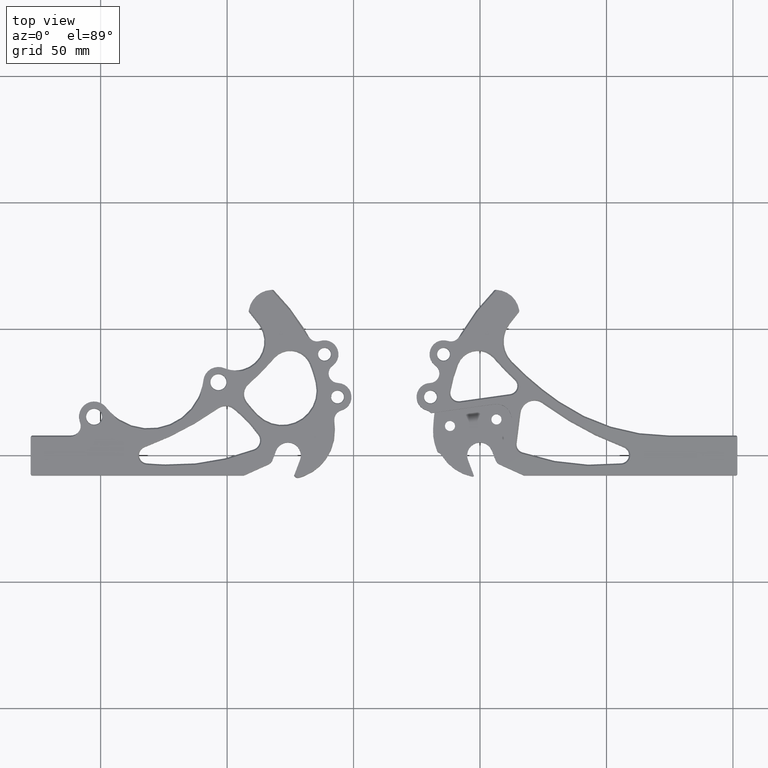
[diagram: clean part render]
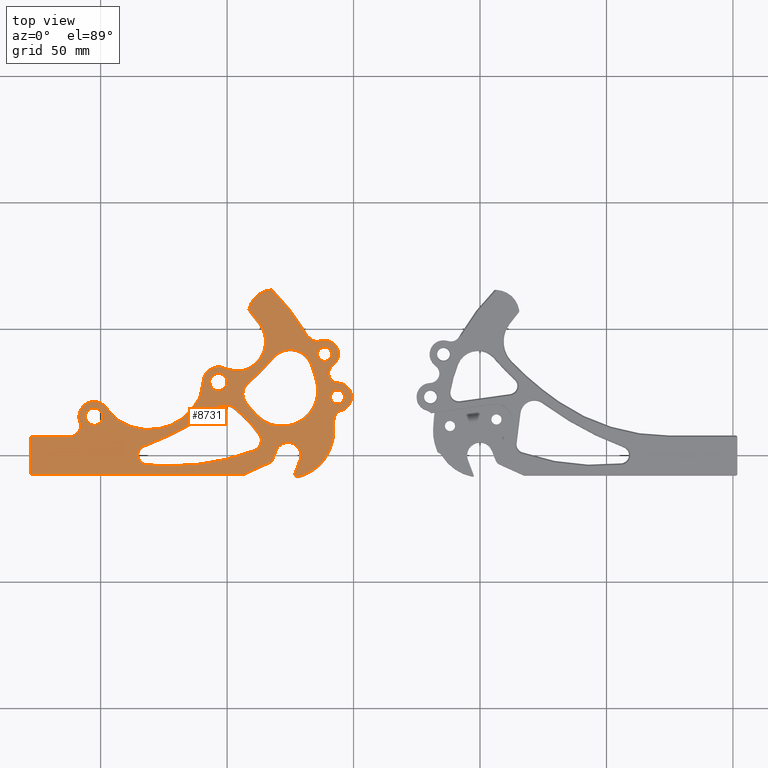
[diagram: same view with one face highlighted and labeled with its STEP entity id]
A machine part, top view. The second image highlights one B-rep face of the part: STEP entity #8731.
In plain terms, the highlighted planar face has unit normal (-0, 0, 1).
Its self-contained STEP definition (entity closure, byte-faithful):
#12 = DIRECTION ( 'NONE',  ( -0.0000000000000000000, 0.0000000000000000000, 1.000000000000000000 ) ) ;
#20 = EDGE_LOOP ( 'NONE', ( #5979, #8550, #7825, #1384, #9046, #2049, #3551, #8948 ) ) ;
#40 = CIRCLE ( 'NONE', #6398, 0.5545000000000007700 ) ;
#53 = CARTESIAN_POINT ( 'NONE',  ( 4.275448787308388200, -6.602741156965603200, 0.1970000000000466900 ) ) ;
#60 = CIRCLE ( 'NONE', #4588, 0.8500000000001419800 ) ;
#79 = CARTESIAN_POINT ( 'NONE',  ( 0.3476215611165375300, -6.033190573470813300, 0.1970000000000000100 ) ) ;
#87 = DIRECTION ( 'NONE',  ( 1.000000000000000000, 0.0000000000000000000, 0.0000000000000000000 ) ) ;
#90 = AXIS2_PLACEMENT_3D ( 'NONE', #1623, #6255, #833 ) ;
#91 = CARTESIAN_POINT ( 'NONE',  ( 2.744192585949976500, -6.801010541202033200, 0.1970000000000000100 ) ) ;
#104 = CARTESIAN_POINT ( 'NONE',  ( 0.3329559133930030700, -5.957140151456513000, 0.1970000000000004000 ) ) ;
#136 = DIRECTION ( 'NONE',  ( -0.0000000000000000000, 0.0000000000000000000, 1.000000000000000000 ) ) ;
#169 = EDGE_CURVE ( 'NONE', #3310, #4051, #8691, .T. ) ;
#193 = CARTESIAN_POINT ( 'NONE',  ( 1.581299777049116000, -6.132819681275631000, 0.1969999999999999800 ) ) ;
#208 = EDGE_CURVE ( 'NONE', #8678, #1447, #7953, .T. ) ;
#258 = ORIENTED_EDGE ( 'NONE', *, *, #9791, .F. ) ;
#262 = B_SPLINE_CURVE_WITH_KNOTS ( 'NONE', 3,
 ( #2720, #7400, #53, #6690, #8955, #4756, #8266, #7423, #9071 ),
 .UNSPECIFIED., .F., .F.,
 ( 4, 1, 1, 1, 1, 1, 4 ),
 ( 0.0000000000000000000, 0.0007344723342131463200, 0.001503647207485794100, 0.002277745142583869000, 0.002872480003196441100, 0.003452910538468640300, 0.003462682151923086900 ),
 .UNSPECIFIED. ) ;
#284 = ORIENTED_EDGE ( 'NONE', *, *, #5056, .F. ) ;
#305 = AXIS2_PLACEMENT_3D ( 'NONE', #2807, #8262, #4326 ) ;
#337 = VERTEX_POINT ( 'NONE', #6414 ) ;
#349 = DIRECTION ( 'NONE',  ( -0.0000000000000000000, 0.0000000000000000000, 1.000000000000000000 ) ) ;
#373 = VERTEX_POINT ( 'NONE', #2961 ) ;
#388 = CARTESIAN_POINT ( 'NONE',  ( 0.5065921858051957200, -4.735563363399697900, 0.1970000000000000100 ) ) ;
#406 = DIRECTION ( 'NONE',  ( 1.000000000000000000, 0.0000000000000000000, 0.0000000000000000000 ) ) ;
#419 = CARTESIAN_POINT ( 'NONE',  ( 2.282086955113391500, -6.063882068036988000, 0.1970000000000000100 ) ) ;
#465 = DIRECTION ( 'NONE',  ( -0.0000000000000000000, 0.0000000000000000000, 1.000000000000000000 ) ) ;
#477 = CARTESIAN_POINT ( 'NONE',  ( 0.2669999999986907800, -5.615564887599514800, 0.1970000000000000100 ) ) ;
#511 = AXIS2_PLACEMENT_3D ( 'NONE', #2852, #8298, #3623 ) ;
#518 = CIRCLE ( 'NONE', #9768, 0.2000000984159831500 ) ;
#529 = DIRECTION ( 'NONE',  ( -0.0000000000000000000, 0.0000000000000000000, 1.000000000000000000 ) ) ;
#535 = CARTESIAN_POINT ( 'NONE',  ( 2.081876398835472900, -6.268246739610420400, 0.1970000000000000100 ) ) ;
#548 = VECTOR ( 'NONE', #9881, 39.37007874015748100 ) ;
#553 = CIRCLE ( 'NONE', #8974, 0.03000000000000159100 ) ;
#559 = CARTESIAN_POINT ( 'NONE',  ( 0.8676433948095647600, -5.661552700292130400, 0.1970000000000000100 ) ) ;
#577 = B_SPLINE_CURVE_WITH_KNOTS ( 'NONE', 3,
 ( #6825, #3137, #5904, #6548, #2652, #6521 ),
 .UNSPECIFIED., .F., .F.,
 ( 4, 1, 1, 4 ),
 ( 0.001911238113251691900, 0.002981495565386614500, 0.004162674628813085700, 0.005325524112672994100 ),
 .UNSPECIFIED. ) ;
#599 = EDGE_CURVE ( 'NONE', #5606, #5803, #2945, .T. ) ;
#602 = AXIS2_PLACEMENT_3D ( 'NONE', #8629, #3164, #7836 ) ;
#612 = ORIENTED_EDGE ( 'NONE', *, *, #3552, .T. ) ;
#625 = ORIENTED_EDGE ( 'NONE', *, *, #4927, .F. ) ;
#631 = CIRCLE ( 'NONE', #5419, 0.1499999999999997700 ) ;
#674 = CARTESIAN_POINT ( 'NONE',  ( 1.484434612203321600, -5.643877487171083700, 0.1970000000000000100 ) ) ;
#686 = CARTESIAN_POINT ( 'NONE',  ( 1.646137060386013900, -4.239424942215595000, 0.1970000000000000600 ) ) ;
#732 = EDGE_CURVE ( 'NONE', #6223, #8571, #1736, .T. ) ;
#734 = EDGE_LOOP ( 'NONE', ( #6839, #5052, #5827, #5948, #6932, #8970, #7694 ) ) ;
#751 = VERTEX_POINT ( 'NONE', #5160 ) ;
#754 = B_SPLINE_CURVE_WITH_KNOTS ( 'NONE', 3,
 ( #9390, #3943, #4721, #859, #2526, #1416 ),
 .UNSPECIFIED., .F., .F.,
 ( 4, 1, 1, 4 ),
 ( 0.001690113143063945700, 0.006472976187355167900, 0.01329005639562897000, 0.02395186904596145100 ),
 .UNSPECIFIED. ) ;
#756 = ORIENTED_EDGE ( 'NONE', *, *, #5856, .T. ) ;
#762 = CARTESIAN_POINT ( 'NONE',  ( 1.484434612203321600, -5.643877487171083700, 0.1970000000000000100 ) ) ;
#775 = CARTESIAN_POINT ( 'NONE',  ( 0.7204578753231945000, -4.629157753844930700, 0.1970000000000003400 ) ) ;
#833 = DIRECTION ( 'NONE',  ( 1.000000000000000000, 0.0000000000000000000, 0.0000000000000000000 ) ) ;
#836 = VERTEX_POINT ( 'NONE', #4398 ) ;
#859 = CARTESIAN_POINT ( 'NONE',  ( 0.3508159347527157200, -6.403799966323091100, 0.1969999999999999800 ) ) ;
#861 = CARTESIAN_POINT ( 'NONE',  ( 0.9010326410232224500, -6.823934965465375600, 0.1970000000000001700 ) ) ;
#948 = ORIENTED_EDGE ( 'NONE', *, *, #6397, .T. ) ;
#949 = CARTESIAN_POINT ( 'NONE',  ( 2.325103046238602600, -4.695402574595497900, 0.1970000000000000400 ) ) ;
#962 = EDGE_CURVE ( 'NONE', #2218, #9873, #1936, .T. ) ;
#1007 = CIRCLE ( 'NONE', #5102, 1.999999999999869400 ) ;
#1018 = CIRCLE ( 'NONE', #305, 0.1350000000000000600 ) ;
#1029 = DIRECTION ( 'NONE',  ( -0.0000000000000000000, 0.0000000000000000000, 1.000000000000000000 ) ) ;
#1058 = DIRECTION ( 'NONE',  ( 0.0000000000000000000, -0.0000000000000000000, -1.000000000000000000 ) ) ;
#1073 = CARTESIAN_POINT ( 'NONE',  ( 1.489745673178416200, -6.071938460484731500, 0.1970000000000000400 ) ) ;
#1088 = VERTEX_POINT ( 'NONE', #3465 ) ;
#1130 = DIRECTION ( 'NONE',  ( 1.000000000000000000, 0.0000000000000000000, 0.0000000000000000000 ) ) ;
#1177 = CARTESIAN_POINT ( 'NONE',  ( 1.381798636898517100, -4.580043737796999400, 0.1970000000000000100 ) ) ;
#1201 = AXIS2_PLACEMENT_3D ( 'NONE', #5866, #1221, #6651 ) ;
#1221 = DIRECTION ( 'NONE',  ( 0.0000000000000000000, -0.0000000000000000000, -1.000000000000000000 ) ) ;
#1223 = CARTESIAN_POINT ( 'NONE',  ( 2.915556981445827300, -3.811641052466541600, 0.1970000000000000100 ) ) ;
#1226 = CARTESIAN_POINT ( 'NONE',  ( 2.032986257471999900, -6.120326437051000200, 0.1970000000000000100 ) ) ;
#1237 = CARTESIAN_POINT ( 'NONE',  ( 0.2291863249950003000, -4.943986327537000000, 0.1970000000000000100 ) ) ;
#1287 = FACE_BOUND ( 'NONE', #734, .T. ) ;
#1301 = CIRCLE ( 'NONE', #5322, 0.02999999999999886100 ) ;
#1304 = EDGE_CURVE ( 'NONE', #1349, #5822, #6323, .T. ) ;
#1306 = AXIS2_PLACEMENT_3D ( 'NONE', #3519, #7861, #8149 ) ;
#1308 = CARTESIAN_POINT ( 'NONE',  ( 2.588806816726662700, -5.977932969990835200, 0.1970000000000000100 ) ) ;
#1317 = CARTESIAN_POINT ( 'NONE',  ( 1.474215631377165900, -6.067252950285178400, 0.1970000000000000100 ) ) ;
#1327 = CARTESIAN_POINT ( 'NONE',  ( 1.399084633085560000, -4.909304638426801800, 0.1970000000000000100 ) ) ;
#1333 = AXIS2_PLACEMENT_3D ( 'NONE', #1794, #1029, #9631 ) ;
#1349 = VERTEX_POINT ( 'NONE', #1226 ) ;
#1366 = CARTESIAN_POINT ( 'NONE',  ( 1.581798735314500200, -4.580043737796999400, 0.1970000000000000100 ) ) ;
#1384 = ORIENTED_EDGE ( 'NONE', *, *, #3867, .T. ) ;
#1416 = CARTESIAN_POINT ( 'NONE',  ( 0.3476215611165375300, -6.033190573470813300, 0.1970000000000000100 ) ) ;
#1447 = VERTEX_POINT ( 'NONE', #3130 ) ;
#1449 = DIRECTION ( 'NONE',  ( 0.0000000000000000000, -0.0000000000000000000, -1.000000000000000000 ) ) ;
#1458 = CARTESIAN_POINT ( 'NONE',  ( 0.7651717925219148100, -4.547289657430909000, 0.1970000000000000100 ) ) ;
#1460 = DIRECTION ( 'NONE',  ( 1.000000000000000000, 0.0000000000000000000, 0.0000000000000000000 ) ) ;
#1467 = CARTESIAN_POINT ( 'NONE',  ( 5.135907500282827200, -6.446954203836671800, 0.1970000000000000100 ) ) ;
#1471 = CARTESIAN_POINT ( 'NONE',  ( 1.634512841890023000, -4.222794204222813300, 0.1969999999999999800 ) ) ;
#1480 = DIRECTION ( 'NONE',  ( 1.000000000000000000, 0.0000000000000000000, 0.0000000000000000000 ) ) ;
#1493 = EDGE_CURVE ( 'NONE', #4612, #5010, #2794, .T. ) ;
#1501 = ORIENTED_EDGE ( 'NONE', *, *, #6686, .F. ) ;
#1508 = CARTESIAN_POINT ( 'NONE',  ( 1.987018777843268000, -4.919136670115161500, 0.1970000000000000100 ) ) ;
#1539 = CIRCLE ( 'NONE', #2536, 0.1700000000002530600 ) ;
#1552 = EDGE_CURVE ( 'NONE', #10032, #1815, #8284, .T. ) ;
#1559 = DIRECTION ( 'NONE',  ( 0.8487033737782594400, -0.5288691552145953200, 0.0000000000000000000 ) ) ;
#1562 = CARTESIAN_POINT ( 'NONE',  ( 0.8694017407410261600, -6.546989929891339000, 0.1970000000000000100 ) ) ;
#1581 = VERTEX_POINT ( 'NONE', #9823 ) ;
#1585 = DIRECTION ( 'NONE',  ( -0.0000000000000000000, 0.0000000000000000000, 1.000000000000000000 ) ) ;
#1623 = CARTESIAN_POINT ( 'NONE',  ( 2.403199553980000000, -10.78644950725700000, 0.1970000000000000100 ) ) ;
#1625 = DIRECTION ( 'NONE',  ( 1.000000000000000000, 0.0000000000000000000, 0.0000000000000000000 ) ) ;
#1691 = CARTESIAN_POINT ( 'NONE',  ( 0.3476215611165375300, -6.033190573470813300, 0.1970000000000000100 ) ) ;
#1701 = CARTESIAN_POINT ( 'NONE',  ( 3.589510430735898300, -6.711916538672154400, 0.1970000000000000100 ) ) ;
#1736 = CIRCLE ( 'NONE', #4577, 0.2169999999996839700 ) ;
#1765 = CIRCLE ( 'NONE', #2512, 0.3500000000000004800 ) ;
#1794 = CARTESIAN_POINT ( 'NONE',  ( 0.2426486741714924400, -5.249373663059032900, 0.1970000000000000100 ) ) ;
#1796 = DIRECTION ( 'NONE',  ( 1.000000000000000000, 0.0000000000000000000, 0.0000000000000000000 ) ) ;
#1815 = VERTEX_POINT ( 'NONE', #2129 ) ;
#1878 = DIRECTION ( 'NONE',  ( 1.000000000000000000, 0.0000000000000000000, 0.0000000000000000000 ) ) ;
#1884 = CARTESIAN_POINT ( 'NONE',  ( 1.707515800357571400, -5.623609692723311700, 0.1970000000000000100 ) ) ;
#1885 = DIRECTION ( 'NONE',  ( 0.0000000000000000000, -0.0000000000000000000, -1.000000000000000000 ) ) ;
#1923 = VERTEX_POINT ( 'NONE', #4797 ) ;
#1927 = CARTESIAN_POINT ( 'NONE',  ( 2.205591606490957500, -6.131873938628049600, 0.1970000000000004200 ) ) ;
#1929 = ORIENTED_EDGE ( 'NONE', *, *, #9781, .F. ) ;
#1936 = B_SPLINE_CURVE_WITH_KNOTS ( 'NONE', 3,
 ( #6816, #8322, #3742, #7577, #775, #2941 ),
 .UNSPECIFIED., .F., .F.,
 ( 4, 1, 1, 4 ),
 ( 0.001728275671221370400, 0.002204944055822230900, 0.003080583991056806500, 0.003933433449648670800 ),
 .UNSPECIFIED. ) ;
#1990 = ORIENTED_EDGE ( 'NONE', *, *, #10002, .T. ) ;
#1992 = AXIS2_PLACEMENT_3D ( 'NONE', #6798, #5452, #9389 ) ;
#2012 = CIRCLE ( 'NONE', #1333, 0.1499999999999994900 ) ;
#2041 = CARTESIAN_POINT ( 'NONE',  ( 1.705495466171547100, -6.256866889901541400, 0.1970000000000000100 ) ) ;
#2049 = ORIENTED_EDGE ( 'NONE', *, *, #3898, .T. ) ;
#2067 = DIRECTION ( 'NONE',  ( 0.0000000000000000000, -0.0000000000000000000, -1.000000000000000000 ) ) ;
#2088 = CARTESIAN_POINT ( 'NONE',  ( 0.2669999999986907800, -5.615564887599514800, 0.1970000000000000100 ) ) ;
#2093 = DIRECTION ( 'NONE',  ( -1.000000000000000000, 0.0000000000000000000, 0.0000000000000000000 ) ) ;
#2121 = CARTESIAN_POINT ( 'NONE',  ( 3.526886090137587800, -5.620948073003913400, 0.1970000000000000100 ) ) ;
#2129 = CARTESIAN_POINT ( 'NONE',  ( 1.591698944833728000, -6.145239618651456400, 0.1969999999999999800 ) ) ;
#2131 = LINE ( 'NONE', #3862, #3942 ) ;
#2158 = CARTESIAN_POINT ( 'NONE',  ( 1.338457940387493000, -6.517219448302497200, 0.1970000000000000100 ) ) ;
#2193 = VERTEX_POINT ( 'NONE', #2236 ) ;
#2197 = VERTEX_POINT ( 'NONE', #4534 ) ;
#2205 = CARTESIAN_POINT ( 'NONE',  ( 2.108945101150802200, -5.570743388523873700, 0.1970000000000000100 ) ) ;
#2218 = VERTEX_POINT ( 'NONE', #2690 ) ;
#2227 = CIRCLE ( 'NONE', #3144, 0.2240000000002883300 ) ;
#2236 = CARTESIAN_POINT ( 'NONE',  ( 1.650104297209338900, -4.256333027767045300, 0.1970000000000000400 ) ) ;
#2265 = AXIS2_PLACEMENT_3D ( 'NONE', #3443, #9958, #1878 ) ;
#2283 = DIRECTION ( 'NONE',  ( 1.000000000000000000, 0.0000000000000000000, 0.0000000000000000000 ) ) ;
#2366 = VECTOR ( 'NONE', #9759, 39.37007874015748100 ) ;
#2389 = DIRECTION ( 'NONE',  ( 0.0000000000000000000, -0.0000000000000000000, -1.000000000000000000 ) ) ;
#2390 = B_SPLINE_CURVE_WITH_KNOTS ( 'NONE', 3,
 ( #2744, #3586, #193, #8744, #4040, #1073, #1317 ),
 .UNSPECIFIED., .F., .F.,
 ( 4, 1, 1, 1, 4 ),
 ( 0.002008121654696422800, 0.002089884964133354500, 0.003158846713755656000, 0.004414418043919220500, 0.005637919031326595700 ),
 .UNSPECIFIED. ) ;
#2392 = EDGE_CURVE ( 'NONE', #6223, #2919, #2012, .T. ) ;
#2478 = ORIENTED_EDGE ( 'NONE', *, *, #7068, .F. ) ;
#2479 = DIRECTION ( 'NONE',  ( 1.000000000000000000, 0.0000000000000000000, 0.0000000000000000000 ) ) ;
#2512 = AXIS2_PLACEMENT_3D ( 'NONE', #559, #5215, #9862 ) ;
#2514 = B_SPLINE_CURVE_WITH_KNOTS ( 'NONE', 3,
 ( #7690, #7662, #6903, #1471, #6111, #686, #5341, #9995, #4540 ),
 .UNSPECIFIED., .F., .F.,
 ( 4, 1, 1, 1, 1, 1, 4 ),
 ( 5.594315114139762000E-017, 0.0002753607405250657400, 0.0005590647134430104700, 0.0008520622772371910000, 0.001079147809332359900, 0.001300316271608144100, 0.001516630924246789100 ),
 .UNSPECIFIED. ) ;
#2526 = CARTESIAN_POINT ( 'NONE',  ( 0.3430531124395679300, -6.172932113467872700, 0.1969999999999999800 ) ) ;
#2536 = AXIS2_PLACEMENT_3D ( 'NONE', #7011, #2389, #7791 ) ;
#2549 = DIRECTION ( 'NONE',  ( 1.000000000000000000, -1.165588477296752500E-014, 0.0000000000000000000 ) ) ;
#2555 = EDGE_CURVE ( 'NONE', #3765, #5581, #553, .T. ) ;
#2562 = CARTESIAN_POINT ( 'NONE',  ( 3.587452191816793900, -5.741370570200848200, 0.1970000000000000100 ) ) ;
#2570 = ORIENTED_EDGE ( 'NONE', *, *, #2555, .T. ) ;
#2577 = ORIENTED_EDGE ( 'NONE', *, *, #1552, .F. ) ;
#2578 = ORIENTED_EDGE ( 'NONE', *, *, #732, .T. ) ;
#2611 = LINE ( 'NONE', #2873, #548 ) ;
#2625 = CARTESIAN_POINT ( 'NONE',  ( 3.689210444111999700, -6.687179850910999900, 0.1970000000000000100 ) ) ;
#2639 = EDGE_CURVE ( 'NONE', #9913, #2715, #2131, .T. ) ;
#2652 = CARTESIAN_POINT ( 'NONE',  ( 3.536574766583529400, -6.441474443760585100, 0.1969999999999995600 ) ) ;
#2690 = CARTESIAN_POINT ( 'NONE',  ( 0.6674097470394541000, -4.682728996910170400, 0.1970000000000000400 ) ) ;
#2698 = AXIS2_PLACEMENT_3D ( 'NONE', #7157, #9654, #4985 ) ;
#2715 = VERTEX_POINT ( 'NONE', #4711 ) ;
#2720 = CARTESIAN_POINT ( 'NONE',  ( 4.301417304959994900, -6.616228746393506600, 0.1970000000000000100 ) ) ;
#2744 = CARTESIAN_POINT ( 'NONE',  ( 1.591698944833728000, -6.145239618651456400, 0.1969999999999999800 ) ) ;
#2763 = PLANE ( 'NONE',  #4066 ) ;
#2765 = EDGE_CURVE ( 'NONE', #836, #4724, #5296, .T. ) ;
#2778 = DIRECTION ( 'NONE',  ( 1.000000000000000000, 0.0000000000000000000, 0.0000000000000000000 ) ) ;
#2794 = CIRCLE ( 'NONE', #9207, 0.1250000000000004400 ) ;
#2807 = CARTESIAN_POINT ( 'NONE',  ( 1.897986257471999700, -6.120326437051000200, 0.1970000000000000100 ) ) ;
#2828 = CIRCLE ( 'NONE', #7744, 0.2169999999996839700 ) ;
#2838 = VECTOR ( 'NONE', #5032, 39.37007874015748900 ) ;
#2846 = CIRCLE ( 'NONE', #10016, 0.7300002300663511700 ) ;
#2852 = CARTESIAN_POINT ( 'NONE',  ( 4.204051137979023500, -6.755860614468870700, 0.1970000000000000100 ) ) ;
#2873 = CARTESIAN_POINT ( 'NONE',  ( 1.650104297209338900, 0.0000000000000000000, 0.1970000000000000100 ) ) ;
#2919 = VERTEX_POINT ( 'NONE', #4149 ) ;
#2941 = CARTESIAN_POINT ( 'NONE',  ( 0.7258287145132896700, -4.619058856146431900, 0.1970000000000000100 ) ) ;
#2945 = CIRCLE ( 'NONE', #3983, 0.1350000000000000600 ) ;
#2953 = CARTESIAN_POINT ( 'NONE',  ( 1.762986257471999700, -6.120326437051000200, 0.1970000000000000100 ) ) ;
#2961 = CARTESIAN_POINT ( 'NONE',  ( 0.3279619663926167700, -5.947562222739629900, 0.1969999999999999800 ) ) ;
#2978 = CIRCLE ( 'NONE', #5310, 0.1499999999999997700 ) ;
#2979 = DIRECTION ( 'NONE',  ( 1.000000000000000000, 0.0000000000000000000, 0.0000000000000000000 ) ) ;
#3020 = DIRECTION ( 'NONE',  ( -0.0000000000000000000, 0.0000000000000000000, 1.000000000000000000 ) ) ;
#3021 = ORIENTED_EDGE ( 'NONE', *, *, #8763, .F. ) ;
#3033 = VERTEX_POINT ( 'NONE', #5150 ) ;
#3074 = VERTEX_POINT ( 'NONE', #7896 ) ;
#3077 = EDGE_CURVE ( 'NONE', #4683, #373, #4916, .T. ) ;
#3082 = VERTEX_POINT ( 'NONE', #861 ) ;
#3101 = CARTESIAN_POINT ( 'NONE',  ( 0.8826091451509613400, -6.703735403172565600, 0.1970000000000000400 ) ) ;
#3130 = CARTESIAN_POINT ( 'NONE',  ( 1.703309528895000200, -4.738899541625000800, 0.1970000000000000100 ) ) ;
#3137 = CARTESIAN_POINT ( 'NONE',  ( 3.558755900319785900, -6.543613061104587700, 0.1969999999999995100 ) ) ;
#3144 = AXIS2_PLACEMENT_3D ( 'NONE', #762, #4345, #6985 ) ;
#3164 = DIRECTION ( 'NONE',  ( 0.0000000000000000000, -0.0000000000000000000, -1.000000000000000000 ) ) ;
#3181 = DIRECTION ( 'NONE',  ( 1.000000000000000000, 0.0000000000000000000, 0.0000000000000000000 ) ) ;
#3268 = VERTEX_POINT ( 'NONE', #4635 ) ;
#3270 = ORIENTED_EDGE ( 'NONE', *, *, #5973, .F. ) ;
#3284 = DIRECTION ( 'NONE',  ( 1.000000000000000000, 0.0000000000000000000, 0.0000000000000000000 ) ) ;
#3303 = VECTOR ( 'NONE', #1559, 39.37007874015748900 ) ;
#3307 = CARTESIAN_POINT ( 'NONE',  ( -0.05046984269599844700, -10.43784796087996700, 0.1970000000000000100 ) ) ;
#3310 = VERTEX_POINT ( 'NONE', #8616 ) ;
#3322 = FACE_BOUND ( 'NONE', #10010, .T. ) ;
#3346 = DIRECTION ( 'NONE',  ( 1.000000000000000000, 0.0000000000000000000, 0.0000000000000000000 ) ) ;
#3350 = AXIS2_PLACEMENT_3D ( 'NONE', #9403, #4730, #87 ) ;
#3381 = ORIENTED_EDGE ( 'NONE', *, *, #7248, .T. ) ;
#3443 = CARTESIAN_POINT ( 'NONE',  ( 0.4461863249949999400, -4.943986327537000000, 0.1970000000000000100 ) ) ;
#3465 = CARTESIAN_POINT ( 'NONE',  ( 1.785574133314250300, -5.096520525820864100, 0.1970000000000000100 ) ) ;
#3477 = CARTESIAN_POINT ( 'NONE',  ( -1.766596829582960600, -2.834948256275041400, 0.1970000000000000100 ) ) ;
#3486 = CARTESIAN_POINT ( 'NONE',  ( 3.558612207801783400, -6.557657547501519500, 0.1969999999999999800 ) ) ;
#3508 = EDGE_CURVE ( 'NONE', #5413, #4579, #5863, .T. ) ;
#3517 = DIRECTION ( 'NONE',  ( 1.000000000000000000, 0.0000000000000000000, 0.0000000000000000000 ) ) ;
#3519 = CARTESIAN_POINT ( 'NONE',  ( 2.403199553980000000, -10.78644950725700000, 0.1970000000000000100 ) ) ;
#3551 = ORIENTED_EDGE ( 'NONE', *, *, #7520, .T. ) ;
#3552 = EDGE_CURVE ( 'NONE', #5703, #4274, #1301, .T. ) ;
#3561 = VERTEX_POINT ( 'NONE', #2562 ) ;
#3586 = CARTESIAN_POINT ( 'NONE',  ( 1.591014276286427400, -6.144411586704577200, 0.1970000000000000400 ) ) ;
#3609 = ORIENTED_EDGE ( 'NONE', *, *, #7771, .F. ) ;
#3616 = ORIENTED_EDGE ( 'NONE', *, *, #8894, .F. ) ;
#3623 = DIRECTION ( 'NONE',  ( 1.000000000000000000, 0.0000000000000000000, 0.0000000000000000000 ) ) ;
#3638 = ORIENTED_EDGE ( 'NONE', *, *, #7783, .F. ) ;
#3649 = EDGE_CURVE ( 'NONE', #9268, #9637, #9325, .T. ) ;
#3742 = CARTESIAN_POINT ( 'NONE',  ( 0.6872587528594817900, -4.668707208541881000, 0.1970000000000003400 ) ) ;
#3765 = VERTEX_POINT ( 'NONE', #5501 ) ;
#3790 = CARTESIAN_POINT ( 'NONE',  ( 0.5483473891302653700, -4.591492190032912600, 0.1970000000000000100 ) ) ;
#3800 = CARTESIAN_POINT ( 'NONE',  ( 1.825299316269000300, -4.645588505421000200, 0.1970000000000000100 ) ) ;
#3811 = ORIENTED_EDGE ( 'NONE', *, *, #5467, .T. ) ;
#3817 = DIRECTION ( 'NONE',  ( -0.0000000000000000000, 0.0000000000000000000, 1.000000000000000000 ) ) ;
#3821 = CIRCLE ( 'NONE', #4594, 0.2239999999998490400 ) ;
#3823 = EDGE_CURVE ( 'NONE', #3033, #4022, #6376, .T. ) ;
#3862 = CARTESIAN_POINT ( 'NONE',  ( 2.672540599508462100, -3.493922156538512800, 0.1970000000000000100 ) ) ;
#3867 = EDGE_CURVE ( 'NONE', #8318, #6173, #3821, .T. ) ;
#3871 = CARTESIAN_POINT ( 'NONE',  ( 0.9010326410232224500, -6.823934965465375600, 0.1970000000000001700 ) ) ;
#3881 = ORIENTED_EDGE ( 'NONE', *, *, #10059, .F. ) ;
#3898 = EDGE_CURVE ( 'NONE', #1088, #8417, #1539, .T. ) ;
#3916 = CARTESIAN_POINT ( 'NONE',  ( 1.897948789479431100, -5.645953470700024300, 0.1970000000000000100 ) ) ;
#3940 = CIRCLE ( 'NONE', #5508, 0.2360000000002861800 ) ;
#3942 = VECTOR ( 'NONE', #5573, 39.37007874015748100 ) ;
#3943 = CARTESIAN_POINT ( 'NONE',  ( 0.4226829531220311400, -6.841397517042991300, 0.1969999999999999500 ) ) ;
#3966 = DIRECTION ( 'NONE',  ( 1.000000000000000000, 4.878299988689472100E-015, 0.0000000000000000000 ) ) ;
#3972 = CARTESIAN_POINT ( 'NONE',  ( 0.3406220188312823500, -5.975890168375018500, 0.1970000000000002600 ) ) ;
#3983 = AXIS2_PLACEMENT_3D ( 'NONE', #4865, #2067, #4155 ) ;
#4022 = VERTEX_POINT ( 'NONE', #5095 ) ;
#4037 = EDGE_CURVE ( 'NONE', #4612, #5764, #8833, .T. ) ;
#4040 = CARTESIAN_POINT ( 'NONE',  ( 1.519734829527967300, -6.084506161334438400, 0.1970000000000001500 ) ) ;
#4047 = VERTEX_POINT ( 'NONE', #9726 ) ;
#4051 = VERTEX_POINT ( 'NONE', #6559 ) ;
#4065 = CARTESIAN_POINT ( 'NONE',  ( 0.4461863249949999400, -4.943986327537000000, 0.1970000000000000100 ) ) ;
#4066 = AXIS2_PLACEMENT_3D ( 'NONE', #8992, #465, #5896 ) ;
#4099 = CARTESIAN_POINT ( 'NONE',  ( 4.807802779603002300, -6.919999965117003000, 0.1970000000000000100 ) ) ;
#4149 = CARTESIAN_POINT ( 'NONE',  ( 0.3258384497127469500, -5.124555950993015000, 0.1970000000000000100 ) ) ;
#4155 = DIRECTION ( 'NONE',  ( 1.000000000000000000, 0.0000000000000000000, 0.0000000000000000000 ) ) ;
#4182 = DIRECTION ( 'NONE',  ( -0.0000000000000000000, 0.0000000000000000000, 1.000000000000000000 ) ) ;
#4189 = EDGE_CURVE ( 'NONE', #5816, #8991, #3940, .T. ) ;
#4214 = CARTESIAN_POINT ( 'NONE',  ( 2.191772696469002700, -6.152825652217562600, 0.1970000000000004500 ) ) ;
#4234 = DIRECTION ( 'NONE',  ( -0.0000000000000000000, 0.0000000000000000000, 1.000000000000000000 ) ) ;
#4274 = VERTEX_POINT ( 'NONE', #5579 ) ;
#4317 = CIRCLE ( 'NONE', #602, 3.519999999999998700 ) ;
#4322 = EDGE_CURVE ( 'NONE', #10032, #8775, #7368, .T. ) ;
#4326 = DIRECTION ( 'NONE',  ( 1.000000000000000000, 0.0000000000000000000, 0.0000000000000000000 ) ) ;
#4345 = DIRECTION ( 'NONE',  ( 0.0000000000000000000, -0.0000000000000000000, -1.000000000000000000 ) ) ;
#4375 = CARTESIAN_POINT ( 'NONE',  ( 0.2526015321397999100, -5.399043100882383200, 0.1970000000000000100 ) ) ;
#4379 = EDGE_CURVE ( 'NONE', #4724, #3561, #2978, .T. ) ;
#4398 = CARTESIAN_POINT ( 'NONE',  ( 3.287841201025152800, -5.452300912122991500, 0.1970000000000000100 ) ) ;
#4409 = LINE ( 'NONE', #1223, #2366 ) ;
#4511 = EDGE_CURVE ( 'NONE', #2197, #3033, #1765, .T. ) ;
#4513 = CARTESIAN_POINT ( 'NONE',  ( 0.4461863249949999400, -4.943986327537000000, 0.1970000000000000100 ) ) ;
#4534 = CARTESIAN_POINT ( 'NONE',  ( 0.9681003398024262700, -5.996826323177530500, 0.1970000000000000100 ) ) ;
#4540 = CARTESIAN_POINT ( 'NONE',  ( 1.650104297209338900, -4.256333027767045300, 0.1970000000000000400 ) ) ;
#4548 = DIRECTION ( 'NONE',  ( 1.000000000000000000, 0.0000000000000000000, 0.0000000000000000000 ) ) ;
#4550 = DIRECTION ( 'NONE',  ( 0.0000000000000000000, -0.0000000000000000000, -1.000000000000000000 ) ) ;
#4560 = ORIENTED_EDGE ( 'NONE', *, *, #599, .T. ) ;
#4577 = AXIS2_PLACEMENT_3D ( 'NONE', #2088, #7517, #5924 ) ;
#4579 = VERTEX_POINT ( 'NONE', #419 ) ;
#4584 = DIRECTION ( 'NONE',  ( 1.000000000000000000, 0.0000000000000000000, 0.0000000000000000000 ) ) ;
#4588 = AXIS2_PLACEMENT_3D ( 'NONE', #8496, #3817, #9269 ) ;
#4594 = AXIS2_PLACEMENT_3D ( 'NONE', #2205, #8681, #3966 ) ;
#4612 = VERTEX_POINT ( 'NONE', #9692 ) ;
#4624 = EDGE_CURVE ( 'NONE', #5822, #1349, #1018, .T. ) ;
#4631 = CARTESIAN_POINT ( 'NONE',  ( 6.594572018847898700, -4.109404817231448300, 0.1970000000000000100 ) ) ;
#4635 = CARTESIAN_POINT ( 'NONE',  ( 0.2155482401915204100, -5.826376928082519900, 0.1970000000000000100 ) ) ;
#4638 = EDGE_LOOP ( 'NONE', ( #7552, #4560 ) ) ;
#4680 = ORIENTED_EDGE ( 'NONE', *, *, #3649, .T. ) ;
#4683 = VERTEX_POINT ( 'NONE', #79 ) ;
#4694 = EDGE_CURVE ( 'NONE', #1923, #4683, #754, .T. ) ;
#4711 = CARTESIAN_POINT ( 'NONE',  ( 1.460287941733999800, -4.421187933969000600, 0.1970000000000000100 ) ) ;
#4721 = CARTESIAN_POINT ( 'NONE',  ( 0.3911295808023851900, -6.692501808952291000, 0.1969999999999999800 ) ) ;
#4724 = VERTEX_POINT ( 'NONE', #2121 ) ;
#4730 = DIRECTION ( 'NONE',  ( 0.0000000000000000000, -0.0000000000000000000, -1.000000000000000000 ) ) ;
#4738 = ORIENTED_EDGE ( 'NONE', *, *, #169, .T. ) ;
#4751 = CARTESIAN_POINT ( 'NONE',  ( 0.3468700679503227100, -6.004367819433444000, 0.1970000000000005100 ) ) ;
#4756 = CARTESIAN_POINT ( 'NONE',  ( 4.192828235946585400, -6.600453682243757400, 0.1970000000000466900 ) ) ;
#4780 = CIRCLE ( 'NONE', #1306, 5.000000000000349100 ) ;
#4797 = CARTESIAN_POINT ( 'NONE',  ( 0.4374575193641946400, -6.902250534044370100, 0.1970000000000000400 ) ) ;
#4801 = B_SPLINE_CURVE_WITH_KNOTS ( 'NONE', 3,
 ( #1562, #6184, #3101, #8552, #3871 ),
 .UNSPECIFIED., .F., .F.,
 ( 4, 1, 4 ),
 ( 0.0000000000000000000, 0.004867091450706963500, 0.007083709201803613400 ),
 .UNSPECIFIED. ) ;
#4809 = ORIENTED_EDGE ( 'NONE', *, *, #9477, .F. ) ;
#4865 = CARTESIAN_POINT ( 'NONE',  ( 3.824210444112000000, -6.687179850910999900, 0.1970000000000000100 ) ) ;
#4867 = AXIS2_PLACEMENT_3D ( 'NONE', #5784, #349, #4990 ) ;
#4916 = B_SPLINE_CURVE_WITH_KNOTS ( 'NONE', 3,
 ( #1691, #5553, #4751, #3972, #104, #7877, #7081 ),
 .UNSPECIFIED., .F., .F.,
 ( 4, 1, 1, 1, 4 ),
 ( 0.0000000000000000000, 0.0007220244877187392400, 0.001463555078857781500, 0.002209262981751094100, 0.002246435890973026400 ),
 .UNSPECIFIED. ) ;
#4920 = CARTESIAN_POINT ( 'NONE',  ( 5.106613852298272200, -6.440482558933170200, 0.1970000000000000100 ) ) ;
#4927 = EDGE_CURVE ( 'NONE', #9873, #8880, #8930, .T. ) ;
#4985 = DIRECTION ( 'NONE',  ( 1.000000000000000000, 0.0000000000000000000, 0.0000000000000000000 ) ) ;
#4990 = DIRECTION ( 'NONE',  ( 1.000000000000000000, 0.0000000000000000000, 0.0000000000000000000 ) ) ;
#5010 = VERTEX_POINT ( 'NONE', #3800 ) ;
#5032 = DIRECTION ( 'NONE',  ( -0.8487033737782969700, 0.5288691552145354800, 0.0000000000000000000 ) ) ;
#5052 = ORIENTED_EDGE ( 'NONE', *, *, #9256, .T. ) ;
#5056 = EDGE_CURVE ( 'NONE', #5816, #7058, #8700, .T. ) ;
#5065 = DIRECTION ( 'NONE',  ( -0.0000000000000000000, 0.0000000000000000000, 1.000000000000000000 ) ) ;
#5075 = CARTESIAN_POINT ( 'NONE',  ( 3.407328328579518400, -5.888314616911363200, 0.1970000000000000100 ) ) ;
#5095 = CARTESIAN_POINT ( 'NONE',  ( 0.5996424699677442800, -5.304712945345721100, 0.1970000000000000100 ) ) ;
#5102 = AXIS2_PLACEMENT_3D ( 'NONE', #9219, #4550, #10005 ) ;
#5111 = EDGE_CURVE ( 'NONE', #8057, #9413, #2227, .T. ) ;
#5125 = ORIENTED_EDGE ( 'NONE', *, *, #2392, .F. ) ;
#5134 = AXIS2_PLACEMENT_3D ( 'NONE', #1308, #8393, #3181 ) ;
#5150 = CARTESIAN_POINT ( 'NONE',  ( 0.5234107104262061300, -5.598276646352052100, 0.1970000000000000100 ) ) ;
#5160 = CARTESIAN_POINT ( 'NONE',  ( 1.665435288097090800, -5.358917278807203000, 0.1970000000000000100 ) ) ;
#5165 = LINE ( 'NONE', #4631, #9296 ) ;
#5174 = EDGE_CURVE ( 'NONE', #4579, #7277, #8120, .T. ) ;
#5202 = CARTESIAN_POINT ( 'NONE',  ( 1.901243097227192500, -4.744873661077694900, 0.1970000000000000100 ) ) ;
#5211 = ORIENTED_EDGE ( 'NONE', *, *, #962, .F. ) ;
#5215 = DIRECTION ( 'NONE',  ( 0.0000000000000000000, -0.0000000000000000000, -1.000000000000000000 ) ) ;
#5240 = EDGE_CURVE ( 'NONE', #5764, #5581, #5398, .T. ) ;
#5266 = ORIENTED_EDGE ( 'NONE', *, *, #1304, .T. ) ;
#5296 = CIRCLE ( 'NONE', #7331, 5.999999999999999100 ) ;
#5310 = AXIS2_PLACEMENT_3D ( 'NONE', #8402, #1058, #5708 ) ;
#5317 = EDGE_CURVE ( 'NONE', #751, #8057, #1007, .T. ) ;
#5322 = AXIS2_PLACEMENT_3D ( 'NONE', #4099, #9566, #1796 ) ;
#5341 = CARTESIAN_POINT ( 'NONE',  ( 1.649002538943692000, -4.247787340193664100, 0.1969999999999999000 ) ) ;
#5345 = ORIENTED_EDGE ( 'NONE', *, *, #6789, .T. ) ;
#5398 = LINE ( 'NONE', #7467, #3303 ) ;
#5405 = EDGE_CURVE ( 'NONE', #5803, #5606, #6366, .T. ) ;
#5413 = VERTEX_POINT ( 'NONE', #9937 ) ;
#5419 = AXIS2_PLACEMENT_3D ( 'NONE', #7317, #1885, #6525 ) ;
#5420 = FACE_BOUND ( 'NONE', #9550, .T. ) ;
#5452 = DIRECTION ( 'NONE',  ( 0.0000000000000000000, -0.0000000000000000000, -1.000000000000000000 ) ) ;
#5467 = EDGE_CURVE ( 'NONE', #4051, #3310, #7732, .T. ) ;
#5477 = ORIENTED_EDGE ( 'NONE', *, *, #8967, .T. ) ;
#5501 = CARTESIAN_POINT ( 'NONE',  ( 5.132074953511999400, -6.456348633589000100, 0.1970000000000000100 ) ) ;
#5508 = AXIS2_PLACEMENT_3D ( 'NONE', #8043, #7365, #2778 ) ;
#5520 = CARTESIAN_POINT ( 'NONE',  ( 1.124876579623999900, -5.482475089948000100, 0.1970000000000000100 ) ) ;
#5529 = CIRCLE ( 'NONE', #3350, 0.1100000000013103800 ) ;
#5530 = CIRCLE ( 'NONE', #7683, 0.1499999999999999100 ) ;
#5553 = CARTESIAN_POINT ( 'NONE',  ( 0.3479382552704246600, -6.023503405703042500, 0.1970000000000004000 ) ) ;
#5573 = DIRECTION ( 'NONE',  ( -0.7942790901180625300, -0.6075530651730947100, 0.0000000000000000000 ) ) ;
#5579 = CARTESIAN_POINT ( 'NONE',  ( 4.833263880815999300, -6.935866039774000000, 0.1970000000000000100 ) ) ;
#5581 = VERTEX_POINT ( 'NONE', #1467 ) ;
#5606 = VERTEX_POINT ( 'NONE', #2625 ) ;
#5654 = FACE_BOUND ( 'NONE', #8341, .T. ) ;
#5657 = CIRCLE ( 'NONE', #9952, 0.4700000000008686100 ) ;
#5703 = VERTEX_POINT ( 'NONE', #7055 ) ;
#5708 = DIRECTION ( 'NONE',  ( 1.000000000000000000, 0.0000000000000000000, 0.0000000000000000000 ) ) ;
#5764 = VERTEX_POINT ( 'NONE', #949 ) ;
#5784 = CARTESIAN_POINT ( 'NONE',  ( 0.6205751946913343800, -6.574999992436281600, 0.1970000000000000100 ) ) ;
#5803 = VERTEX_POINT ( 'NONE', #6299 ) ;
#5816 = VERTEX_POINT ( 'NONE', #1701 ) ;
#5821 = EDGE_CURVE ( 'NONE', #7058, #5413, #577, .T. ) ;
#5822 = VERTEX_POINT ( 'NONE', #2953 ) ;
#5827 = ORIENTED_EDGE ( 'NONE', *, *, #6154, .T. ) ;
#5832 = ORIENTED_EDGE ( 'NONE', *, *, #4624, .T. ) ;
#5856 = EDGE_CURVE ( 'NONE', #9637, #2919, #6994, .T. ) ;
#5860 = ORIENTED_EDGE ( 'NONE', *, *, #8776, .F. ) ;
#5863 = CIRCLE ( 'NONE', #2698, 0.8700000000008684100 ) ;
#5866 = CARTESIAN_POINT ( 'NONE',  ( 3.781844429402111200, -4.974434879832742200, 0.1970000000000000100 ) ) ;
#5884 = ORIENTED_EDGE ( 'NONE', *, *, #9971, .F. ) ;
#5896 = DIRECTION ( 'NONE',  ( 1.000000000000000000, 0.0000000000000000000, 0.0000000000000000000 ) ) ;
#5904 = CARTESIAN_POINT ( 'NONE',  ( 3.556984010290435100, -6.514005814146476500, 0.1969999999999995100 ) ) ;
#5909 = CARTESIAN_POINT ( 'NONE',  ( 0.8694017407410261600, -6.546989929891339000, 0.1970000000000000100 ) ) ;
#5920 = CARTESIAN_POINT ( 'NONE',  ( 2.282086955113391500, -6.063882068036988000, 0.1970000000000000100 ) ) ;
#5924 = DIRECTION ( 'NONE',  ( 1.000000000000000000, 0.0000000000000000000, 0.0000000000000000000 ) ) ;
#5948 = ORIENTED_EDGE ( 'NONE', *, *, #4511, .T. ) ;
#5973 = EDGE_CURVE ( 'NONE', #1815, #10039, #2390, .T. ) ;
#5979 = ORIENTED_EDGE ( 'NONE', *, *, #4379, .T. ) ;
#6079 = CARTESIAN_POINT ( 'NONE',  ( 3.577613641107931600, -6.135707375890335800, 0.1970000000000000100 ) ) ;
#6087 = VERTEX_POINT ( 'NONE', #9865 ) ;
#6091 = AXIS2_PLACEMENT_3D ( 'NONE', #6079, #1449, #1480 ) ;
#6098 = DIRECTION ( 'NONE',  ( 0.0000000000000000000, -0.0000000000000000000, -1.000000000000000000 ) ) ;
#6106 = ORIENTED_EDGE ( 'NONE', *, *, #208, .F. ) ;
#6111 = CARTESIAN_POINT ( 'NONE',  ( 1.641423610244266100, -4.230765776915594000, 0.1969999999999999800 ) ) ;
#6154 = EDGE_CURVE ( 'NONE', #337, #2197, #4780, .T. ) ;
#6173 = VERTEX_POINT ( 'NONE', #3916 ) ;
#6184 = CARTESIAN_POINT ( 'NONE',  ( 0.8734452631019360400, -6.610698648408598100, 0.1970000000000000600 ) ) ;
#6197 = CARTESIAN_POINT ( 'NONE',  ( 0.1569999999973804300, -5.615564887599514800, 0.1970000000000000100 ) ) ;
#6212 = CARTESIAN_POINT ( 'NONE',  ( 0.1799825076047633400, -5.972099536710942400, 0.1970000000000000100 ) ) ;
#6223 = VERTEX_POINT ( 'NONE', #4375 ) ;
#6255 = DIRECTION ( 'NONE',  ( -0.0000000000000000000, 0.0000000000000000000, 1.000000000000000000 ) ) ;
#6256 = AXIS2_PLACEMENT_3D ( 'NONE', #6558, #8135, #1130 ) ;
#6286 = CARTESIAN_POINT ( 'NONE',  ( 0.2669999999986907800, -5.615564887599514800, 0.1970000000000000100 ) ) ;
#6299 = CARTESIAN_POINT ( 'NONE',  ( 3.959210444111999700, -6.687179850910999900, 0.1970000000000000100 ) ) ;
#6312 = CARTESIAN_POINT ( 'NONE',  ( 0.7258287145132896700, -4.619058856146431900, 0.1970000000000000100 ) ) ;
#6321 = AXIS2_PLACEMENT_3D ( 'NONE', #9436, #136, #4548 ) ;
#6323 = CIRCLE ( 'NONE', #6256, 0.1350000000000000600 ) ;
#6366 = CIRCLE ( 'NONE', #1992, 0.1350000000000000600 ) ;
#6376 = CIRCLE ( 'NONE', #5134, 2.100000000000000500 ) ;
#6397 = EDGE_CURVE ( 'NONE', #8571, #3268, #2828, .T. ) ;
#6398 = AXIS2_PLACEMENT_3D ( 'NONE', #5520, #6886, #2979 ) ;
#6414 = CARTESIAN_POINT ( 'NONE',  ( 1.523830352432663100, -5.864385935199525300, 0.1970000000000000100 ) ) ;
#6444 = DIRECTION ( 'NONE',  ( -0.0000000000000000000, 0.0000000000000000000, 1.000000000000000000 ) ) ;
#6449 = CARTESIAN_POINT ( 'NONE',  ( 1.650104297209338900, -4.275995255446031400, 0.1970000000000000100 ) ) ;
#6502 = CARTESIAN_POINT ( 'NONE',  ( -0.5739737044856893000, -4.309258707354054300, 0.1970000000000000100 ) ) ;
#6521 = CARTESIAN_POINT ( 'NONE',  ( 3.529985116690154400, -6.427607141867673200, 0.1970000000000000100 ) ) ;
#6525 = DIRECTION ( 'NONE',  ( 1.000000000000000000, 0.0000000000000000000, 0.0000000000000000000 ) ) ;
#6538 = ORIENTED_EDGE ( 'NONE', *, *, #5240, .F. ) ;
#6544 = EDGE_CURVE ( 'NONE', #4022, #751, #40, .T. ) ;
#6548 = CARTESIAN_POINT ( 'NONE',  ( 3.547486573820212400, -6.470135100836681200, 0.1969999999999997300 ) ) ;
#6558 = CARTESIAN_POINT ( 'NONE',  ( 1.897986257471999700, -6.120326437051000200, 0.1970000000000000100 ) ) ;
#6559 = CARTESIAN_POINT ( 'NONE',  ( 0.3361863249950003400, -4.943986327537000000, 0.1970000000000000100 ) ) ;
#6569 = ORIENTED_EDGE ( 'NONE', *, *, #5821, .F. ) ;
#6592 = CIRCLE ( 'NONE', #8594, 0.1100000000013103800 ) ;
#6634 = ORIENTED_EDGE ( 'NONE', *, *, #5174, .F. ) ;
#6651 = DIRECTION ( 'NONE',  ( 1.000000000000000000, 1.092739197465696600E-015, 0.0000000000000000000 ) ) ;
#6663 = EDGE_LOOP ( 'NONE', ( #5884, #612, #8038, #2570, #6538, #8216, #8986, #1990, #6106, #2478, #8900, #5860, #3609, #3021, #625, #5211, #3638, #4680, #756, #5125, #2578, #948, #258, #8814, #7891, #3381, #1929, #4809, #3270, #2577, #8501, #3616, #6634, #8575, #6569, #284, #9969, #3881, #1501 ) ) ;
#6686 = EDGE_CURVE ( 'NONE', #1581, #6087, #262, .T. ) ;
#6690 = CARTESIAN_POINT ( 'NONE',  ( 4.246572565555373700, -6.595755584156366400, 0.1970000000000465500 ) ) ;
#6746 = VECTOR ( 'NONE', #7656, 39.37007874015748100 ) ;
#6753 = DIRECTION ( 'NONE',  ( -0.0000000000000000000, -0.0000000000000000000, -1.000000000000000000 ) ) ;
#6768 = DIRECTION ( 'NONE',  ( 1.000000000000000000, 0.0000000000000000000, 0.0000000000000000000 ) ) ;
#6789 = EDGE_CURVE ( 'NONE', #4047, #9292, #6592, .T. ) ;
#6798 = CARTESIAN_POINT ( 'NONE',  ( 3.824210444112000000, -6.687179850910999900, 0.1970000000000000100 ) ) ;
#6809 = DIRECTION ( 'NONE',  ( -0.0000000000000000000, 0.0000000000000000000, 1.000000000000000000 ) ) ;
#6816 = CARTESIAN_POINT ( 'NONE',  ( 0.6674097470394541000, -4.682728996910170400, 0.1970000000000000400 ) ) ;
#6825 = CARTESIAN_POINT ( 'NONE',  ( 3.558612207801783400, -6.557657547501519500, 0.1969999999999999800 ) ) ;
#6839 = ORIENTED_EDGE ( 'NONE', *, *, #5111, .T. ) ;
#6842 = AXIS2_PLACEMENT_3D ( 'NONE', #4513, #8451, #4584 ) ;
#6886 = DIRECTION ( 'NONE',  ( 0.0000000000000000000, -0.0000000000000000000, -1.000000000000000000 ) ) ;
#6903 = CARTESIAN_POINT ( 'NONE',  ( 1.625301133283025800, -4.216043159626346800, 0.1970000000000000400 ) ) ;
#6932 = ORIENTED_EDGE ( 'NONE', *, *, #3823, .T. ) ;
#6985 = DIRECTION ( 'NONE',  ( 1.000000000000000000, 1.219574997169976400E-013, 0.0000000000000000000 ) ) ;
#6994 = CIRCLE ( 'NONE', #2265, 0.2169999999999996400 ) ;
#7011 = CARTESIAN_POINT ( 'NONE',  ( 1.955257108482000100, -5.086143245912000000, 0.1970000000000000100 ) ) ;
#7022 = DIRECTION ( 'NONE',  ( 1.000000000000000000, 0.0000000000000000000, 0.0000000000000000000 ) ) ;
#7045 = VERTEX_POINT ( 'NONE', #5075 ) ;
#7054 = CARTESIAN_POINT ( 'NONE',  ( 4.056444650725047100, -6.729171198578627300, 0.1970000000000000100 ) ) ;
#7055 = CARTESIAN_POINT ( 'NONE',  ( 4.826519044483451800, -6.943445677495277300, 0.1970000000000000100 ) ) ;
#7058 = VERTEX_POINT ( 'NONE', #3486 ) ;
#7068 = EDGE_CURVE ( 'NONE', #2715, #8678, #518, .T. ) ;
#7081 = CARTESIAN_POINT ( 'NONE',  ( 0.3279619663926167700, -5.947562222739629900, 0.1969999999999999800 ) ) ;
#7157 = CARTESIAN_POINT ( 'NONE',  ( 2.744192585949976500, -6.801010541202033200, 0.1970000000000000100 ) ) ;
#7197 = CARTESIAN_POINT ( 'NONE',  ( 1.708434612203609800, -5.643877487171083700, 0.1970000000000000100 ) ) ;
#7248 = EDGE_CURVE ( 'NONE', #1923, #3082, #8680, .T. ) ;
#7249 = FACE_OUTER_BOUND ( 'NONE', #6663, .T. ) ;
#7276 = CARTESIAN_POINT ( 'NONE',  ( 0.04999999999900685300, -5.615564887599514800, 0.1970000000000000100 ) ) ;
#7277 = VERTEX_POINT ( 'NONE', #9660 ) ;
#7278 = EDGE_CURVE ( 'NONE', #3561, #7045, #631, .T. ) ;
#7317 = CARTESIAN_POINT ( 'NONE',  ( 3.437452191816794000, -5.741370570200848200, 0.1970000000000000100 ) ) ;
#7331 = AXIS2_PLACEMENT_3D ( 'NONE', #3307, #7993, #2549 ) ;
#7365 = DIRECTION ( 'NONE',  ( -0.0000000000000000000, 0.0000000000000000000, 1.000000000000000000 ) ) ;
#7368 = CIRCLE ( 'NONE', #6321, 0.2360000000002233600 ) ;
#7400 = CARTESIAN_POINT ( 'NONE',  ( 4.293064044785250400, -6.611023415781606800, 0.1970000000000466900 ) ) ;
#7423 = CARTESIAN_POINT ( 'NONE',  ( 4.170847994594391000, -6.609551395146573000, 0.1970000000000465800 ) ) ;
#7467 = CARTESIAN_POINT ( 'NONE',  ( -1.457208373783409400, -2.338456782615897700, 0.1970000000000000100 ) ) ;
#7481 = CIRCLE ( 'NONE', #8254, 0.2240000000002883300 ) ;
#7490 = FACE_BOUND ( 'NONE', #4638, .T. ) ;
#7497 = CARTESIAN_POINT ( 'NONE',  ( 1.474215631377165900, -6.067252950285178400, 0.1970000000000000100 ) ) ;
#7517 = DIRECTION ( 'NONE',  ( -0.0000000000000000000, 0.0000000000000000000, 1.000000000000000000 ) ) ;
#7520 = EDGE_CURVE ( 'NONE', #8417, #836, #4317, .T. ) ;
#7522 = EDGE_CURVE ( 'NONE', #7045, #8318, #8481, .T. ) ;
#7552 = ORIENTED_EDGE ( 'NONE', *, *, #5405, .T. ) ;
#7569 = AXIS2_PLACEMENT_3D ( 'NONE', #1366, #9520, #6768 ) ;
#7577 = CARTESIAN_POINT ( 'NONE',  ( 0.7077847831614260100, -4.647976398710362400, 0.1970000000000003400 ) ) ;
#7656 = DIRECTION ( 'NONE',  ( 0.9912457952156881200, -0.1320294416682061300, 0.0000000000000000000 ) ) ;
#7662 = CARTESIAN_POINT ( 'NONE',  ( 1.618287663072391700, -4.212984205250937600, 0.1970000000000000400 ) ) ;
#7683 = AXIS2_PLACEMENT_3D ( 'NONE', #6212, #1585, #7022 ) ;
#7690 = CARTESIAN_POINT ( 'NONE',  ( 1.615009302353623400, -4.211969085698846100, 0.1970000000000000100 ) ) ;
#7694 = ORIENTED_EDGE ( 'NONE', *, *, #5317, .T. ) ;
#7732 = CIRCLE ( 'NONE', #8855, 0.1099999999999996400 ) ;
#7744 = AXIS2_PLACEMENT_3D ( 'NONE', #6286, #12, #1625 ) ;
#7751 = CIRCLE ( 'NONE', #1201, 2.000000000000016000 ) ;
#7752 = DIRECTION ( 'NONE',  ( 1.000000000000000000, 0.0000000000000000000, 0.0000000000000000000 ) ) ;
#7771 = EDGE_CURVE ( 'NONE', #3074, #2193, #2514, .T. ) ;
#7783 = EDGE_CURVE ( 'NONE', #9268, #2218, #8115, .T. ) ;
#7791 = DIRECTION ( 'NONE',  ( 1.000000000000000000, 0.0000000000000000000, 0.0000000000000000000 ) ) ;
#7825 = ORIENTED_EDGE ( 'NONE', *, *, #7522, .T. ) ;
#7836 = DIRECTION ( 'NONE',  ( 1.000000000000000000, 0.0000000000000000000, 0.0000000000000000000 ) ) ;
#7842 = DIRECTION ( 'NONE',  ( 1.000000000000000000, 0.0000000000000000000, 0.0000000000000000000 ) ) ;
#7861 = DIRECTION ( 'NONE',  ( -0.0000000000000000000, 0.0000000000000000000, 1.000000000000000000 ) ) ;
#7873 = AXIS2_PLACEMENT_3D ( 'NONE', #91, #8310, #2479 ) ;
#7877 = CARTESIAN_POINT ( 'NONE',  ( 0.3281901094724588600, -5.947995338059500100, 0.1970000000000004000 ) ) ;
#7891 = ORIENTED_EDGE ( 'NONE', *, *, #4694, .F. ) ;
#7896 = CARTESIAN_POINT ( 'NONE',  ( 1.615009302353623400, -4.211969085698846100, 0.1970000000000000100 ) ) ;
#7926 = AXIS2_PLACEMENT_3D ( 'NONE', #9716, #5065, #406 ) ;
#7949 = CARTESIAN_POINT ( 'NONE',  ( 2.234895324377879100, -6.098103324779087200, 0.1970000000000004800 ) ) ;
#7953 = CIRCLE ( 'NONE', #7569, 0.2000000984159831500 ) ;
#7993 = DIRECTION ( 'NONE',  ( 0.0000000000000000000, -0.0000000000000000000, -1.000000000000000000 ) ) ;
#8004 = DIRECTION ( 'NONE',  ( 1.000000000000000000, 0.0000000000000000000, 0.0000000000000000000 ) ) ;
#8038 = ORIENTED_EDGE ( 'NONE', *, *, #9267, .F. ) ;
#8043 = CARTESIAN_POINT ( 'NONE',  ( 3.824210444112000000, -6.687179850910999900, 0.1970000000000000100 ) ) ;
#8057 = VERTEX_POINT ( 'NONE', #1884 ) ;
#8115 = CIRCLE ( 'NONE', #9033, 0.1500000000000004400 ) ;
#8120 = B_SPLINE_CURVE_WITH_KNOTS ( 'NONE', 3,
 ( #5920, #8450, #7949, #1927, #4214, #9346 ),
 .UNSPECIFIED., .F., .F.,
 ( 4, 1, 1, 4 ),
 ( 0.0000000000000000000, 0.001473357141579357000, 0.002968827581246715500, 0.003385829139678514800 ),
 .UNSPECIFIED. ) ;
#8127 = DIRECTION ( 'NONE',  ( 0.0000000000000000000, -0.0000000000000000000, -1.000000000000000000 ) ) ;
#8135 = DIRECTION ( 'NONE',  ( 0.0000000000000000000, -0.0000000000000000000, -1.000000000000000000 ) ) ;
#8147 = EDGE_CURVE ( 'NONE', #6173, #1088, #7751, .T. ) ;
#8149 = DIRECTION ( 'NONE',  ( 1.000000000000000000, 0.0000000000000000000, 0.0000000000000000000 ) ) ;
#8165 = VERTEX_POINT ( 'NONE', #5909 ) ;
#8216 = ORIENTED_EDGE ( 'NONE', *, *, #4037, .F. ) ;
#8254 = AXIS2_PLACEMENT_3D ( 'NONE', #674, #6098, #1460 ) ;
#8262 = DIRECTION ( 'NONE',  ( 0.0000000000000000000, -0.0000000000000000000, -1.000000000000000000 ) ) ;
#8266 = CARTESIAN_POINT ( 'NONE',  ( 4.177985680454650500, -6.606115336600286300, 0.1970000000000465500 ) ) ;
#8284 = CIRCLE ( 'NONE', #8881, 0.4500000000001730400 ) ;
#8298 = DIRECTION ( 'NONE',  ( -0.0000000000000000000, 0.0000000000000000000, 1.000000000000000000 ) ) ;
#8310 = DIRECTION ( 'NONE',  ( -0.0000000000000000000, 0.0000000000000000000, 1.000000000000000000 ) ) ;
#8318 = VERTEX_POINT ( 'NONE', #8434 ) ;
#8322 = CARTESIAN_POINT ( 'NONE',  ( 0.6727229924779392100, -4.679292736814443500, 0.1970000000000004000 ) ) ;
#8323 = CIRCLE ( 'NONE', #511, 0.1499999999999997700 ) ;
#8341 = EDGE_LOOP ( 'NONE', ( #4738, #3811 ) ) ;
#8393 = DIRECTION ( 'NONE',  ( 0.0000000000000000000, -0.0000000000000000000, -1.000000000000000000 ) ) ;
#8402 = CARTESIAN_POINT ( 'NONE',  ( 3.437452191816794000, -5.741370570200848200, 0.1970000000000000100 ) ) ;
#8417 = VERTEX_POINT ( 'NONE', #1508 ) ;
#8434 = CARTESIAN_POINT ( 'NONE',  ( 2.121562443691716200, -5.794387755023764800, 0.1970000000000000100 ) ) ;
#8450 = CARTESIAN_POINT ( 'NONE',  ( 2.265601374488715800, -6.074216873856612700, 0.1970000000000004500 ) ) ;
#8451 = DIRECTION ( 'NONE',  ( 0.0000000000000000000, -0.0000000000000000000, -1.000000000000000000 ) ) ;
#8481 = CIRCLE ( 'NONE', #90, 5.000000000000002700 ) ;
#8496 = CARTESIAN_POINT ( 'NONE',  ( 2.744192585949976500, -6.801010541202033200, 0.1970000000000000100 ) ) ;
#8501 = ORIENTED_EDGE ( 'NONE', *, *, #4322, .T. ) ;
#8550 = ORIENTED_EDGE ( 'NONE', *, *, #7278, .T. ) ;
#8552 = CARTESIAN_POINT ( 'NONE',  ( 0.8963060955417199200, -6.795380180650228800, 0.1970000000000000400 ) ) ;
#8571 = VERTEX_POINT ( 'NONE', #7276 ) ;
#8575 = ORIENTED_EDGE ( 'NONE', *, *, #3508, .F. ) ;
#8594 = AXIS2_PLACEMENT_3D ( 'NONE', #477, #8859, #8004 ) ;
#8616 = CARTESIAN_POINT ( 'NONE',  ( 0.5561863249949996500, -4.943986327537000000, 0.1970000000000000100 ) ) ;
#8629 = CARTESIAN_POINT ( 'NONE',  ( 1.329365388716337900, -8.377155180732167100, 0.1970000000000000100 ) ) ;
#8678 = VERTEX_POINT ( 'NONE', #1177 ) ;
#8680 = CIRCLE ( 'NONE', #4867, 0.3749999999999999400 ) ;
#8681 = DIRECTION ( 'NONE',  ( 0.0000000000000000000, -0.0000000000000000000, -1.000000000000000000 ) ) ;
#8691 = CIRCLE ( 'NONE', #6842, 0.1099999999999996400 ) ;
#8700 = CIRCLE ( 'NONE', #7873, 0.8500000000001419800 ) ;
#8731 = ADVANCED_FACE ( 'NONE', ( #7490, #3322, #5654, #5420, #1287, #9311, #7249 ), #2763, .T. ) ;
#8744 = CARTESIAN_POINT ( 'NONE',  ( 1.558684884482574700, -6.110432156094763200, 0.1969999999999999800 ) ) ;
#8763 = EDGE_CURVE ( 'NONE', #8880, #3074, #2846, .T. ) ;
#8775 = VERTEX_POINT ( 'NONE', #535 ) ;
#8776 = EDGE_CURVE ( 'NONE', #2193, #9913, #2611, .T. ) ;
#8814 = ORIENTED_EDGE ( 'NONE', *, *, #3077, .F. ) ;
#8819 = LINE ( 'NONE', #3477, #2838 ) ;
#8833 = LINE ( 'NONE', #6502, #6746 ) ;
#8855 = AXIS2_PLACEMENT_3D ( 'NONE', #4065, #8127, #3284 ) ;
#8859 = DIRECTION ( 'NONE',  ( 0.0000000000000000000, -0.0000000000000000000, -1.000000000000000000 ) ) ;
#8870 = CARTESIAN_POINT ( 'NONE',  ( 1.338457940387493000, -6.517219448302497200, 0.1970000000000000100 ) ) ;
#8880 = VERTEX_POINT ( 'NONE', #1458 ) ;
#8881 = AXIS2_PLACEMENT_3D ( 'NONE', #2158, #6809, #7842 ) ;
#8894 = EDGE_CURVE ( 'NONE', #7277, #8775, #60, .T. ) ;
#8900 = ORIENTED_EDGE ( 'NONE', *, *, #2639, .F. ) ;
#8930 = CIRCLE ( 'NONE', #6091, 3.229999999999038100 ) ;
#8948 = ORIENTED_EDGE ( 'NONE', *, *, #2765, .T. ) ;
#8955 = CARTESIAN_POINT ( 'NONE',  ( 4.218464172285026200, -6.595346143196991300, 0.1970000000000467500 ) ) ;
#8967 = EDGE_CURVE ( 'NONE', #9292, #4047, #5529, .T. ) ;
#8970 = ORIENTED_EDGE ( 'NONE', *, *, #6544, .T. ) ;
#8974 = AXIS2_PLACEMENT_3D ( 'NONE', #4920, #6444, #3346 ) ;
#8986 = ORIENTED_EDGE ( 'NONE', *, *, #1493, .T. ) ;
#8991 = VERTEX_POINT ( 'NONE', #7054 ) ;
#8992 = CARTESIAN_POINT ( 'NONE',  ( 0.0000000000000000000, 0.0000000000000000000, 0.1970000000000000100 ) ) ;
#9033 = AXIS2_PLACEMENT_3D ( 'NONE', #3790, #3020, #2283 ) ;
#9046 = ORIENTED_EDGE ( 'NONE', *, *, #8147, .T. ) ;
#9071 = CARTESIAN_POINT ( 'NONE',  ( 4.170729889627690300, -6.609608454114541200, 0.1970000000000000400 ) ) ;
#9207 = AXIS2_PLACEMENT_3D ( 'NONE', #5202, #529, #7752 ) ;
#9219 = CARTESIAN_POINT ( 'NONE',  ( -0.2842805224454635900, -5.804572143159267800, 0.1970000000000000100 ) ) ;
#9256 = EDGE_CURVE ( 'NONE', #9413, #337, #7481, .T. ) ;
#9267 = EDGE_CURVE ( 'NONE', #3765, #4274, #5165, .T. ) ;
#9268 = VERTEX_POINT ( 'NONE', #388 ) ;
#9269 = DIRECTION ( 'NONE',  ( 1.000000000000000000, 0.0000000000000000000, 0.0000000000000000000 ) ) ;
#9292 = VERTEX_POINT ( 'NONE', #6197 ) ;
#9296 = VECTOR ( 'NONE', #10094, 39.37007874015748900 ) ;
#9311 = FACE_BOUND ( 'NONE', #20, .T. ) ;
#9325 = CIRCLE ( 'NONE', #7926, 0.2169999999999996400 ) ;
#9346 = CARTESIAN_POINT ( 'NONE',  ( 2.188891454383111100, -6.157472932914220800, 0.1969999999999999800 ) ) ;
#9389 = DIRECTION ( 'NONE',  ( 1.000000000000000000, 0.0000000000000000000, 0.0000000000000000000 ) ) ;
#9390 = CARTESIAN_POINT ( 'NONE',  ( 0.4374575193641946400, -6.902250534044370100, 0.1970000000000000400 ) ) ;
#9403 = CARTESIAN_POINT ( 'NONE',  ( 0.2669999999986907800, -5.615564887599514800, 0.1970000000000000100 ) ) ;
#9413 = VERTEX_POINT ( 'NONE', #7197 ) ;
#9436 = CARTESIAN_POINT ( 'NONE',  ( 1.897986257471999700, -6.120326437051000200, 0.1970000000000000100 ) ) ;
#9477 = EDGE_CURVE ( 'NONE', #10039, #8165, #5657, .T. ) ;
#9520 = DIRECTION ( 'NONE',  ( -0.0000000000000000000, 0.0000000000000000000, 1.000000000000000000 ) ) ;
#9550 = EDGE_LOOP ( 'NONE', ( #5345, #5477 ) ) ;
#9566 = DIRECTION ( 'NONE',  ( -0.0000000000000000000, 0.0000000000000000000, 1.000000000000000000 ) ) ;
#9631 = DIRECTION ( 'NONE',  ( 1.000000000000000000, 0.0000000000000000000, 0.0000000000000000000 ) ) ;
#9637 = VERTEX_POINT ( 'NONE', #1237 ) ;
#9639 = DIRECTION ( 'NONE',  ( 1.000000000000000000, 0.0000000000000000000, 0.0000000000000000000 ) ) ;
#9654 = DIRECTION ( 'NONE',  ( -0.0000000000000000000, 0.0000000000000000000, 1.000000000000000000 ) ) ;
#9660 = CARTESIAN_POINT ( 'NONE',  ( 2.188891454383111100, -6.157472932914220800, 0.1969999999999999800 ) ) ;
#9692 = CARTESIAN_POINT ( 'NONE',  ( 1.847876625949895300, -4.631838181057440300, 0.1970000000000000100 ) ) ;
#9700 = CARTESIAN_POINT ( 'NONE',  ( 1.581798735314500200, -4.580043737796999400, 0.1970000000000000100 ) ) ;
#9716 = CARTESIAN_POINT ( 'NONE',  ( 0.4461863249949999400, -4.943986327537000000, 0.1970000000000000100 ) ) ;
#9726 = CARTESIAN_POINT ( 'NONE',  ( 0.3770000000000012200, -5.615564887599514800, 0.1970000000000000100 ) ) ;
#9759 = DIRECTION ( 'NONE',  ( -0.7942801356541008300, -0.6075516982984273700, 0.0000000000000000000 ) ) ;
#9768 = AXIS2_PLACEMENT_3D ( 'NONE', #9700, #4234, #3517 ) ;
#9781 = EDGE_CURVE ( 'NONE', #8165, #3082, #4801, .T. ) ;
#9791 = EDGE_CURVE ( 'NONE', #373, #3268, #5530, .T. ) ;
#9823 = CARTESIAN_POINT ( 'NONE',  ( 4.301417304959994900, -6.616228746393506600, 0.1970000000000000100 ) ) ;
#9862 = DIRECTION ( 'NONE',  ( 1.000000000000000000, 0.0000000000000000000, 0.0000000000000000000 ) ) ;
#9865 = CARTESIAN_POINT ( 'NONE',  ( 4.170729889627690300, -6.609608454114541200, 0.1970000000000000400 ) ) ;
#9873 = VERTEX_POINT ( 'NONE', #6312 ) ;
#9881 = DIRECTION ( 'NONE',  ( 0.0000000000000000000, -1.000000000000000000, 0.0000000000000000000 ) ) ;
#9913 = VERTEX_POINT ( 'NONE', #6449 ) ;
#9937 = CARTESIAN_POINT ( 'NONE',  ( 3.529985116690154400, -6.427607141867673200, 0.1970000000000000100 ) ) ;
#9952 = AXIS2_PLACEMENT_3D ( 'NONE', #8870, #4182, #9639 ) ;
#9958 = DIRECTION ( 'NONE',  ( -0.0000000000000000000, 0.0000000000000000000, 1.000000000000000000 ) ) ;
#9969 = ORIENTED_EDGE ( 'NONE', *, *, #4189, .T. ) ;
#9971 = EDGE_CURVE ( 'NONE', #5703, #1581, #8819, .T. ) ;
#9995 = CARTESIAN_POINT ( 'NONE',  ( 1.649922100329263000, -4.253658877603246700, 0.1970000000000000100 ) ) ;
#10002 = EDGE_CURVE ( 'NONE', #5010, #1447, #4409, .T. ) ;
#10005 = DIRECTION ( 'NONE',  ( 1.000000000000000000, 1.803019675818531300E-014, 0.0000000000000000000 ) ) ;
#10010 = EDGE_LOOP ( 'NONE', ( #5266, #5832 ) ) ;
#10016 = AXIS2_PLACEMENT_3D ( 'NONE', #1327, #6753, #2093 ) ;
#10032 = VERTEX_POINT ( 'NONE', #2041 ) ;
#10039 = VERTEX_POINT ( 'NONE', #7497 ) ;
#10059 = EDGE_CURVE ( 'NONE', #6087, #8991, #8323, .T. ) ;
#10094 = DIRECTION ( 'NONE',  ( -0.5288691552140564200, -0.8487033737785952800, 0.0000000000000000000 ) ) ;